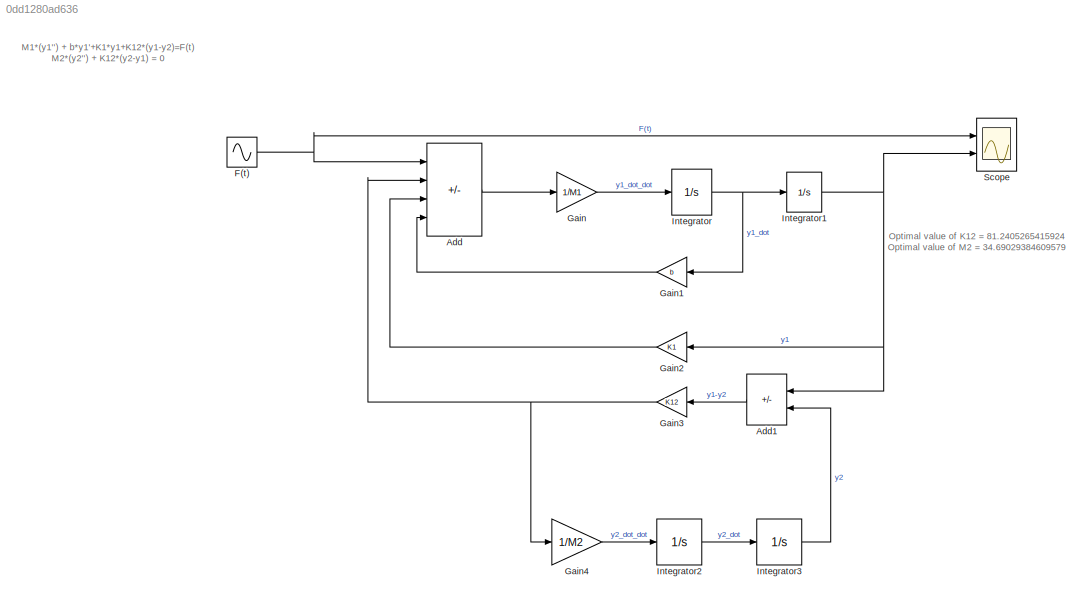
MODEL slx_0dd1280ad636
KIND model
CONFIG AbsTol = auto
CONFIG EnableMultiTasking = off
CONFIG FixedStep = auto
CONFIG MaxStep = auto
CONFIG MinStep = auto
CONFIG PostLoadFcn = M1=100;\nK1=50;\nb=50;\nK12=81.2405265415924;\nM2=34.69029384609579;
CONFIG RelTol = 1e-3
CONFIG SampleTimeConstraint = Unconstrained
CONFIG Solver = VariableStepAuto
CONFIG SolverName = VariableStepAuto
CONFIG StartTime = 0.0
CONFIG StopTime = 10.0
BLOCK [Sum] Add
  IconShape = rectangular
  Inputs = +---
  Ports = [4, 1]
BLOCK [Sum] Add1
  IconShape = rectangular
  Inputs = +-
  NameLocation = top
  Ports = [2, 1]
BLOCK [Sin] F(t)
  Amplitude = 2
  Frequency = 10
  Ports = [0, 1]
  SampleTime = 0.001
BLOCK [Gain] Gain
  Gain = 1/M1
BLOCK [Gain] Gain1
  Gain = b
  NameLocation = top
BLOCK [Gain] Gain2
  Gain = K1
  NameLocation = top
BLOCK [Gain] Gain3
  Gain = K12
  NameLocation = top
BLOCK [Gain] Gain4
  Gain = 1/M2
BLOCK [Integrator] Integrator
  Ports = [1, 1]
BLOCK [Integrator] Integrator1
  Ports = [1, 1]
BLOCK [Integrator] Integrator2
  Ports = [1, 1]
BLOCK [Integrator] Integrator3
  Ports = [1, 1]
BLOCK [Scope] Scope
  Floating = off
  NumInputPorts = 2
  Ports = [2]
  ScopeSpecificationString = Simulink.scopes.TimeScopeBlockCfg('CurrentConfiguration', extmgr.ConfigurationSet(extmgr.Configuration('Core','General UI',true),extmgr.Configuration('Core','Source UI',true),extmgr.Configuration('Sources','WiredSimulink',true),extmgr.Configuration('Visuals','Time Domain',true,'SerializedDisplays',{struct('MinYLimReal','-2.5','MaxYLimReal','2.5','YLabelReal','','MinYLimMag','0.00000','MaxYLimMag',...<+1984ch>
ANNOTATION (root): Optimal value of K12 = 81.2405265415924 Optimal value of M2 = 34.69029384609579
ANNOTATION (root): M1*(y1'') + b*y1'+K1*y1+K12*(y1-y2)=F(t) M2*(y2'') + K12*(y2-y1) = 0
LINE Add1:1 -> Gain3:1
LINE Add:1 -> Gain:1
NET F(t):1 -> Add:1, Scope:1
LINE Gain1:1 -> Add:4
LINE Gain2:1 -> Add:3
NET Gain3:1 -> Add:2, Gain4:1
LINE Gain4:1 -> Integrator2:1
LINE Gain:1 -> Integrator:1
NET Integrator1:1 -> Add1:1, Gain2:1, Scope:2
LINE Integrator2:1 -> Integrator3:1
LINE Integrator3:1 -> Add1:2
NET Integrator:1 -> Gain1:1, Integrator1:1
note: NET lines group one-source signal fan-out (src -> all destinations, sorted); 1:1 wires keep LINE
